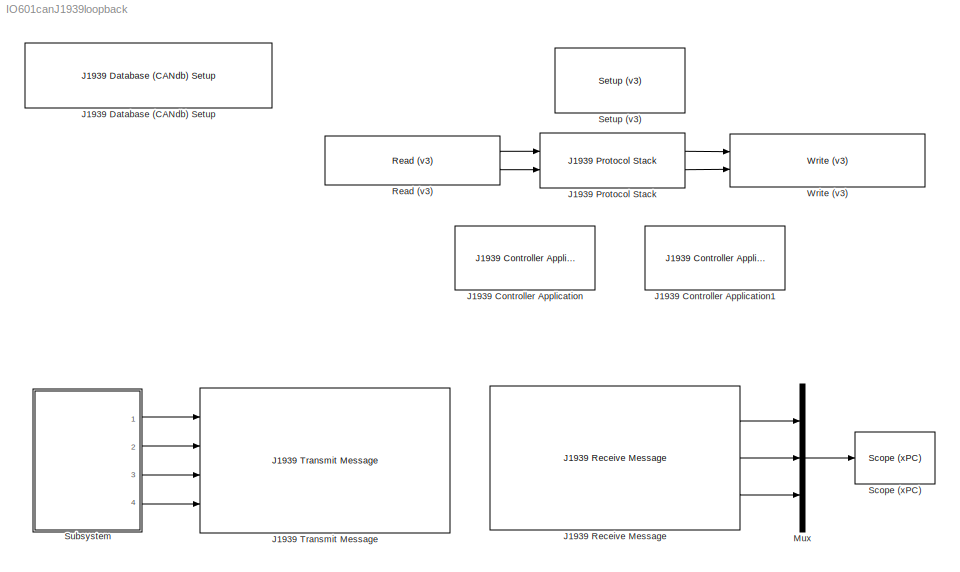
MODEL IO601canJ1939loopback
KIND model
BLOCK [Reference] J1939 Controller Application  REF=xpcJ1939lib/J1939 Controller Application
  Ports = []
  Priority = -1
  SID = 40
  SourceBlock = xpcJ1939lib/J1939 Controller Application
  SourceType = J1939CA
  aac = on
  ca_id = 1
  ecu_ins = 0
  func = 0
  func_ins = 0
  id_no = 1
  ind_grp = 0
  man_code = 0
  naddr_out = off
  name_array = 1|0|0|0|0|0|0|0|0|1
  node_addr = 1
  res = 0
  stack_id = 1
  status = off
  veh_sys = 0
  veh_sys_ins = 0
BLOCK [Reference] J1939 Controller Application1  REF=xpcJ1939lib/J1939 Controller Application
  Ports = []
  Priority = -1
  SID = 41
  SourceBlock = xpcJ1939lib/J1939 Controller Application
  SourceType = J1939CA
  aac = on
  ca_id = 2
  ecu_ins = 0
  func = 0
  func_ins = 0
  id_no = 2
  ind_grp = 0
  man_code = 0
  naddr_out = off
  name_array = 2|0|0|0|0|0|0|0|0|1
  node_addr = 2
  res = 0
  stack_id = 1
  status = off
  veh_sys = 0
  veh_sys_ins = 0
BLOCK [Reference] J1939 Database (CANdb) Setup  REF=xpcJ1939lib/J1939 Database (CANdb) Setup
  Ports = []
  SID = 42
  ShowInLibBrowser = 0
  SourceBlock = xpcJ1939lib/J1939 Database (CANdb) Setup
  SourceType = J1939DB
  dbcformat = 1
  j1939dbcfilename = IO601canJ1939_db.dbc
  updateBlock = 1
BLOCK [Reference] J1939 Protocol Stack  REF=xpcJ1939lib/J1939 Protocol Stack
  Ports = [2, 2]
  Priority = -2
  SID = 44
  SourceBlock = xpcJ1939lib/J1939 Protocol Stack
  SourceType = J1939ProtocolStack
  ac_enabled = on
  max_rx = 5
  max_tp_sessions = 10
  max_tx = 20
  sample_rate = -1
  stack_id = 1
  tp_enabled = on
BLOCK [Reference] J1939 Receive Message  REF=xpcJ1939lib/J1939 Receive Message
  Ports = [0, 3]
  Priority = 0
  SID = 45
  SourceBlock = xpcJ1939lib/J1939 Receive Message
  SourceType = J1939Receive
  ca_id = 2
  destinationType = 1
  node_addr = 2
  pgnindex = 65210
  rx_status = 0
  sourceAddress = 255
  stack_id = 1
  updateBlock = 0
BLOCK [Reference] J1939 Transmit Message  REF=xpcJ1939lib/J1939 Transmit Message
  Ports = [4]
  Priority = 0
  SID = 46
  SourceBlock = xpcJ1939lib/J1939 Transmit Message
  SourceType = J1939Transmit
  acronym = 0
  ca_id = 1
  candb_filename = 0
  candb_format = 1
  destinationAddress = 255
  input_type = 1
  messagePriority = 0
  node_addr = 1
  pgnindex = 65210
  stack_id = 1
  updateBlock = 0
BLOCK [Mux] Mux
  DisplayOption = bar
  Inputs = 3
  Ports = [3, 1]
  SID = 47
BLOCK [Reference] Read (v3)  REF=speedgoatlib_IO601/Read (v3)
  Ports = [0, 2]
  SID = 142
  SourceBlock = speedgoatlib_IO601/Read (v3)
  SourceType = read_IO601_3
  depth1 = 4
  depth2 = 4
  id = 1
  outputFormat = Vector of CAN_MESSAGE
  pciSlot = -1
  port1 = off
  port2 = on
  sampletime = 0.001
BLOCK [Reference] Scope (xPC)  REF=xpclib/Misc./Scope (xPC) 
  Ports = [1]
  SID = 132
  SourceBlock = xpclib/Misc./Scope (xPC)
  SourceType = xpcscopeblock
  autorestart = off
  autostart = on
  dynamicfilemode = off
  filename = data.dat
  formatstr = 'Signal 1: %10.3f,Signal 2: %10.3f,Signal 3: %10.3f'
  grid = on
  interleave = 1
  maxwritefilesize = 512*1024^2
  mode = Lazy
  noprepostsamples = 0
  nosamples = 5
  scopeno = 1
  scopetype = Target
  triggerlevel = 0.0
  triggermode = FreeRun
  triggersample = 0
  triggerscope = 1
  triggersignal = 1
  triggerslope = Either
  trigsignalfromport = off
  viewmode = Numerical
  writesize = 512
  ylimits = [0,0]
BLOCK [Reference] Setup (v3)  REF=speedgoatlib_IO601/Setup (v3)
  Ports = []
  SID = 143
  SourceBlock = speedgoatlib_IO601/Setup (v3)
  SourceType = setup_IO601_3
  can1Baudrate = 1 MBaud
  can1UserBR = [1,1,5,2]
  can1bus = Highspeed
  can1enable = on
  can2Baudrate = 1 MBaud
  can2UserBR = [1,1,5,2]
  can2bus = Highspeed
  can2enable = on
  extAcc1 = [0,0,0,0]
  extAcc2 = [0,0,0,0]
  id = 1
  pciSlot = -1
  stdAcc1 = [0,0,0,0]
  stdAcc2 = [0,0,0,0]
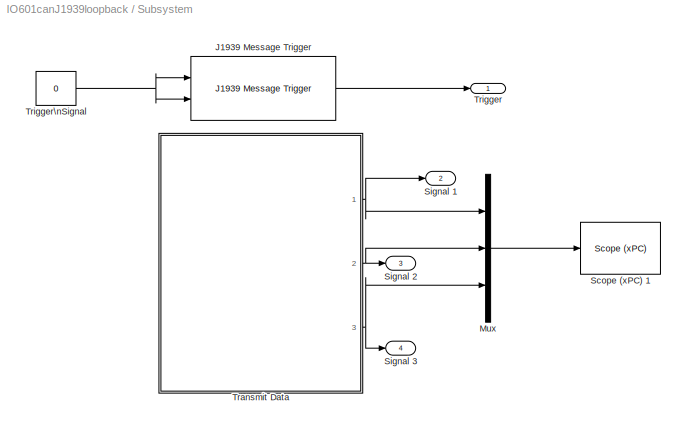
BLOCK [SubSystem] Subsystem
  FunctionWithSeparateData = off
  MaskHideContents = off
  MinAlgLoopOccurrences = off
  Opaque = off
  Ports = [0, 4]
  PropExecContextOutsideSubsystem = off
  RTWSystemCode = Auto
  RequestExecContextInheritance = off
  SID = 73
BLOCK [Reference] Subsystem/J1939 Message Trigger  REF=xpcJ1939lib/J1939 Message Trigger
  Ports = [2, 1]
  SID = 43
  SourceBlock = xpcJ1939lib/J1939 Message Trigger
  SourceType = J1939trigger
  changeThreshold = 10
  minChangeInterval = 0
  repeatOnInterval = on
  repetitionInterval = 10
  sendOnChange = on
BLOCK [Mux] Subsystem/Mux
  DisplayOption = bar
  Inputs = 3
  Ports = [3, 1]
  SID = 78
BLOCK [Reference] Subsystem/Scope (xPC) 1  REF=xpclib/Misc./Scope (xPC) 
  Ports = [1]
  SID = 79
  SourceBlock = xpclib/Misc./Scope (xPC)
  SourceType = xpcscopeblock
  autorestart = off
  autostart = on
  dynamicfilemode = off
  filename = data.dat
  formatstr = 'Signal 1: %10.3f,Signal 2: %10.3f,Signal 3: %10.3f'
  grid = on
  interleave = 1
  maxwritefilesize = 512*1024^2
  mode = Lazy
  noprepostsamples = 0
  nosamples = 5
  scopeno = 3
  scopetype = Target
  triggerlevel = 0.0
  triggermode = FreeRun
  triggersample = 0
  triggerscope = 1
  triggersignal = 1
  triggerslope = Either
  trigsignalfromport = off
  viewmode = Numerical
  writesize = 512
  ylimits = [0,0]
BLOCK [Outport] Subsystem/Signal 1
  IconDisplay = Port number
  Port = 2
  SID = 75
BLOCK [Outport] Subsystem/Signal 2
  IconDisplay = Port number
  Port = 3
  SID = 76
BLOCK [Outport] Subsystem/Signal 3
  IconDisplay = Port number
  Port = 4
  SID = 77
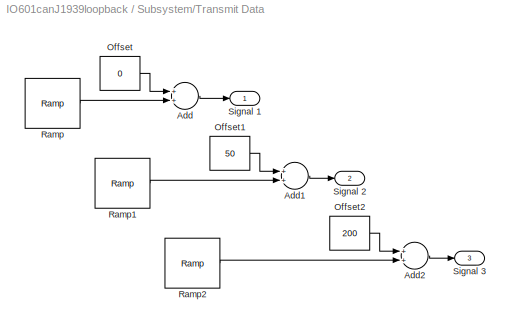
BLOCK [SubSystem] Subsystem/Transmit Data
  FunctionWithSeparateData = off
  MaskHideContents = off
  MinAlgLoopOccurrences = off
  Opaque = off
  Ports = [0, 3]
  PropExecContextOutsideSubsystem = off
  RTWSystemCode = Auto
  RequestExecContextInheritance = off
  SID = 49
BLOCK [Sum] Subsystem/Transmit Data/Add
  InputSameDT = off
  OutDataTypeMode = Inherit via internal rule
  OutDataTypeStr = Inherit: Inherit via internal rule
  Ports = [2, 1]
  SID = 50
  SaturateOnIntegerOverflow = off
BLOCK [Sum] Subsystem/Transmit Data/Add1
  InputSameDT = off
  OutDataTypeMode = Inherit via internal rule
  OutDataTypeStr = Inherit: Inherit via internal rule
  Ports = [2, 1]
  SID = 51
  SaturateOnIntegerOverflow = off
BLOCK [Sum] Subsystem/Transmit Data/Add2
  InputSameDT = off
  OutDataTypeMode = Inherit via internal rule
  OutDataTypeStr = Inherit: Inherit via internal rule
  Ports = [2, 1]
  SID = 52
  SaturateOnIntegerOverflow = off
BLOCK [Constant] Subsystem/Transmit Data/Offset
  SID = 53
  Value = 0
BLOCK [Constant] Subsystem/Transmit Data/Offset1
  SID = 54
  Value = 50
BLOCK [Constant] Subsystem/Transmit Data/Offset2
  SID = 55
  Value = 200
BLOCK [Reference] Subsystem/Transmit Data/Ramp  REF=simulink/Sources/Ramp
  Ports = [0, 1]
  SID = 56
  SourceBlock = simulink/Sources/Ramp
  SourceType = Ramp
  VectorParams1D = on
  X0 = 0
  slope = 0.125
  start = 0
BLOCK [Reference] Subsystem/Transmit Data/Ramp1  REF=simulink/Sources/Ramp
  Ports = [0, 1]
  SID = 57
  SourceBlock = simulink/Sources/Ramp
  SourceType = Ramp
  VectorParams1D = on
  X0 = 0
  slope = 0.125
  start = 0
BLOCK [Reference] Subsystem/Transmit Data/Ramp2  REF=simulink/Sources/Ramp
  Ports = [0, 1]
  SID = 58
  SourceBlock = simulink/Sources/Ramp
  SourceType = Ramp
  VectorParams1D = on
  X0 = 0
  slope = 0.125
  start = 0
BLOCK [Outport] Subsystem/Transmit Data/Signal 1
  IconDisplay = Port number
  SID = 59
BLOCK [Outport] Subsystem/Transmit Data/Signal 2
  IconDisplay = Port number
  Port = 2
  SID = 60
BLOCK [Outport] Subsystem/Transmit Data/Signal 3
  IconDisplay = Port number
  Port = 3
  SID = 61
BLOCK [Outport] Subsystem/Trigger
  IconDisplay = Port number
  SID = 74
BLOCK [Constant] Subsystem/Trigger\nSignal
  SID = 62
  Value = 0
BLOCK [Reference] Write (v3)  REF=speedgoatlib_IO601/Write (v3)
  Ports = [2]
  Priority = 1
  SID = 141
  SourceBlock = speedgoatlib_IO601/Write (v3)
  SourceType = write_IO601_3
  id = 1
  init = []
  inputType = CAN_MESSAGE plus count
  maxMsg = 20
  pciSlot = -1
  port = 1
  sampletime = 0.001
  status = off
  term = []
ANNOTATION (root): \n\n\n\n\n\n\n\n\n\n\n\n\n\n\n\n\nECU 1
LINE J1939 Protocol Stack:1 -> Write (v3):1
LINE J1939 Protocol Stack:2 -> Write (v3):2
LINE J1939 Receive Message:1 -> Mux:1
LINE J1939 Receive Message:2 -> Mux:2
LINE J1939 Receive Message:3 -> Mux:3
LINE Mux:1 -> Scope (xPC):1
LINE Read (v3):1 -> J1939 Protocol Stack:1
LINE Read (v3):2 -> J1939 Protocol Stack:2
LINE Subsystem/J1939 Message Trigger:1 -> Subsystem/Trigger:1
LINE Subsystem/Mux:1 -> Subsystem/Scope (xPC) 1:1
LINE Subsystem/Transmit Data/Add1:1 -> Subsystem/Transmit Data/Signal 2:1
LINE Subsystem/Transmit Data/Add2:1 -> Subsystem/Transmit Data/Signal 3:1
LINE Subsystem/Transmit Data/Add:1 -> Subsystem/Transmit Data/Signal 1:1
LINE Subsystem/Transmit Data/Offset1:1 -> Subsystem/Transmit Data/Add1:1
LINE Subsystem/Transmit Data/Offset2:1 -> Subsystem/Transmit Data/Add2:1
LINE Subsystem/Transmit Data/Offset:1 -> Subsystem/Transmit Data/Add:1
LINE Subsystem/Transmit Data/Ramp1:1 -> Subsystem/Transmit Data/Add1:2
LINE Subsystem/Transmit Data/Ramp2:1 -> Subsystem/Transmit Data/Add2:2
LINE Subsystem/Transmit Data/Ramp:1 -> Subsystem/Transmit Data/Add:2
NET Subsystem/Transmit Data:1 -> Subsystem/Mux:1, Subsystem/Signal 1:1
NET Subsystem/Transmit Data:2 -> Subsystem/Mux:2, Subsystem/Signal 2:1
NET Subsystem/Transmit Data:3 -> Subsystem/Mux:3, Subsystem/Signal 3:1
NET Subsystem/Trigger\nSignal:1 -> Subsystem/J1939 Message Trigger:1, Subsystem/J1939 Message Trigger:2
LINE Subsystem:1 -> J1939 Transmit Message:1
LINE Subsystem:2 -> J1939 Transmit Message:2
LINE Subsystem:3 -> J1939 Transmit Message:3
LINE Subsystem:4 -> J1939 Transmit Message:4
note: NET lines group one-source signal fan-out (src -> all destinations, sorted); 1:1 wires keep LINE
